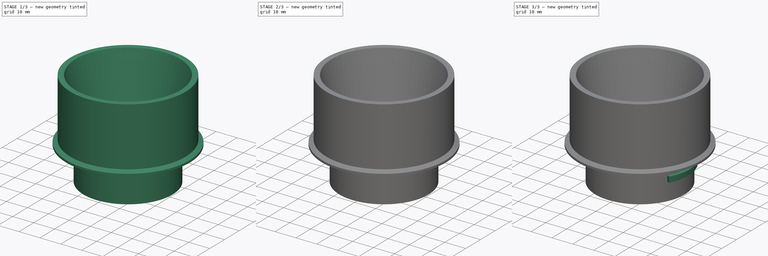
[diagram: build sequence overview — one tinted view per stage of 3, left to right]
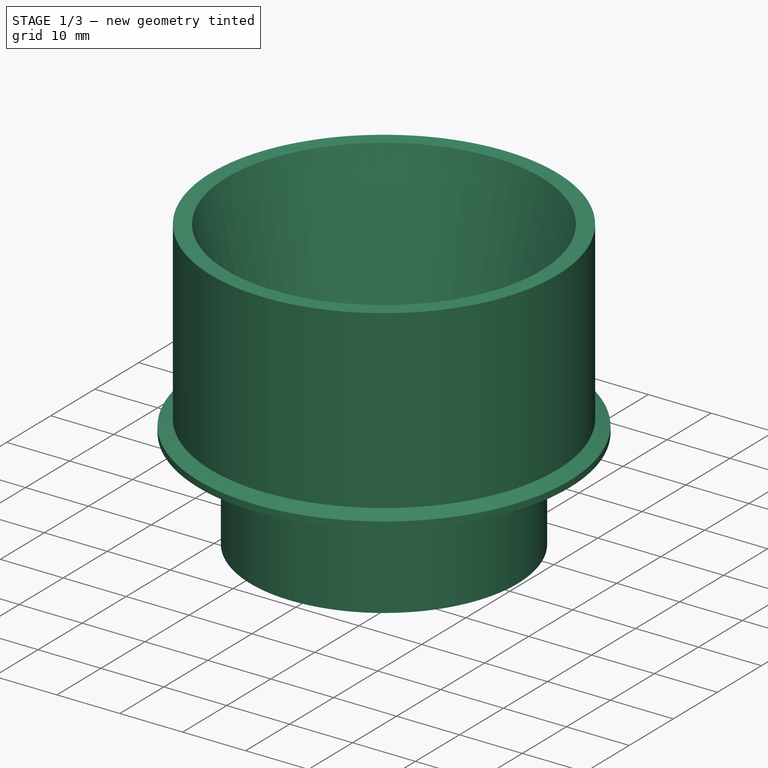
[diagram: stage 1 of 3 — iso view after this stage's code; geometry added in this stage tinted green]
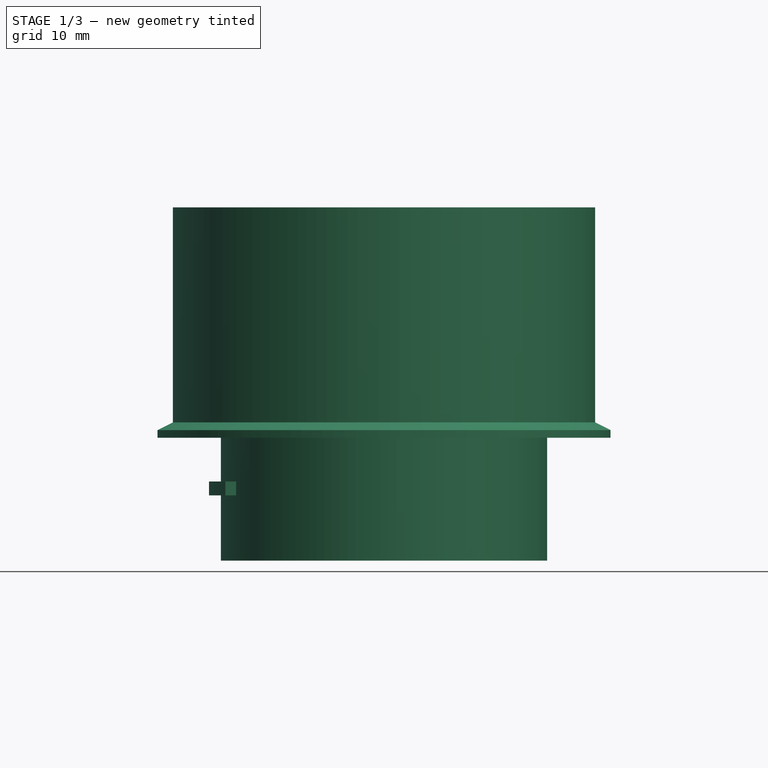
[diagram: stage 1 of 3 — front view after this stage's code; geometry added in this stage tinted green]
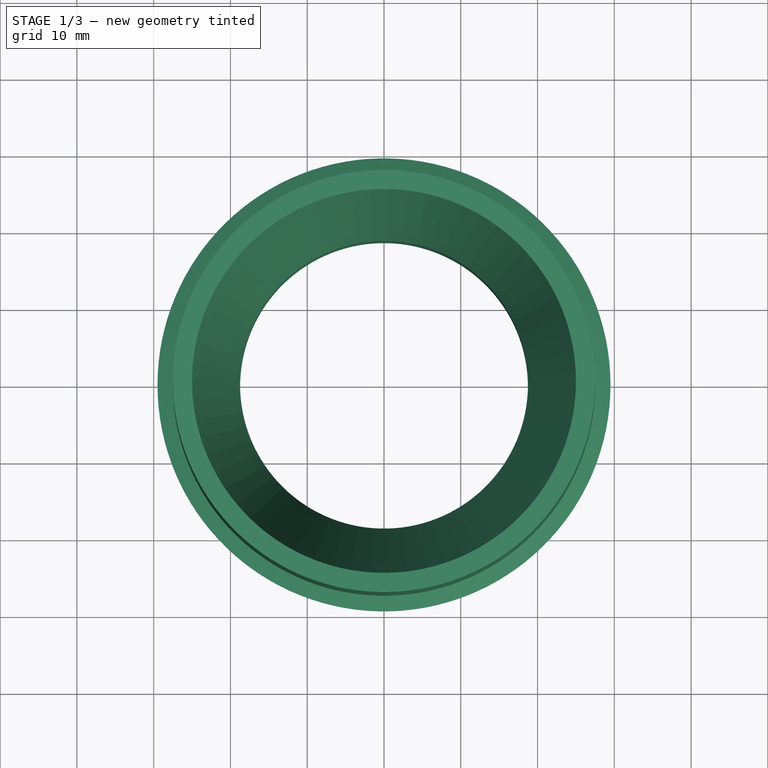
[diagram: stage 1 of 3 — top view after this stage's code; geometry added in this stage tinted green]
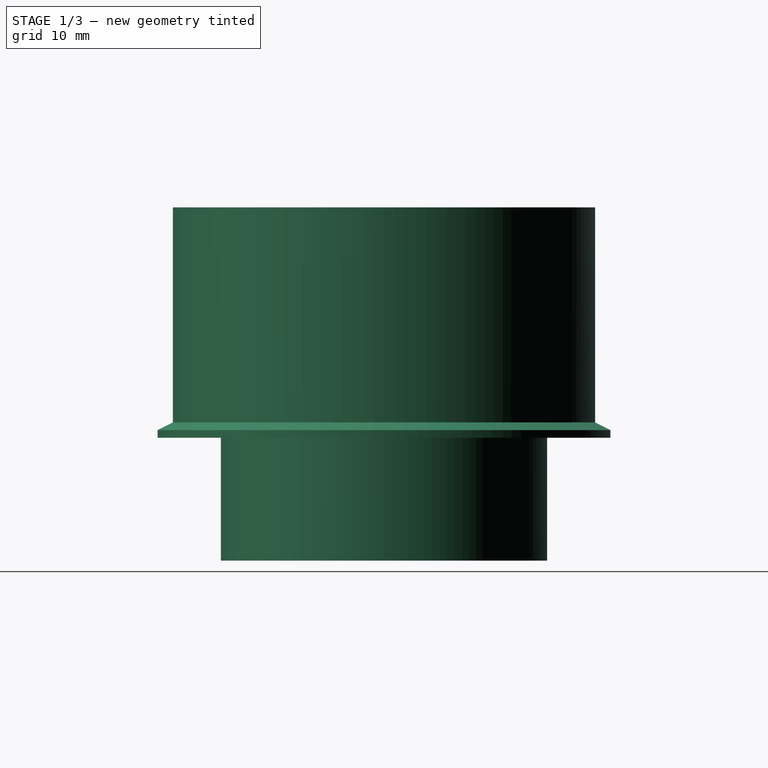
[diagram: stage 1 of 3 — right view after this stage's code; geometry added in this stage tinted green]
FCSTD DOCUMENT  (FreeCAD 0.19R23141 (Git))
Label: VacuumAdapter_new
License: All rights reserved
LicenseURL: http://en.wikipedia.org/wiki/All_rights_reserved
objects: Sketcher::SketchObject×2, PartDesign::Revolution×2, PartDesign::Draft×2, PartDesign::Mirrored×1, PartDesign::Body×1
note: 12 computed .brp shape members not serialized (recipe doc carries the construction recipe); baked Part::Feature solids carry a one-line shape summary decoded from their .brp

FEATURE [Sketcher::SketchObject] Sketch
  MapMode = 5
  Placement = pos=(0,0,0) rot=(1,0,0;1.5708rad)
  Support = -> [XZ_Plane]
  sketch-geometry (9):
    g0: LineSegment StartX=-18.75 StartY=18 StartZ=0 EndX=-18.75 EndY=0 EndZ=0
    g1: LineSegment StartX=-18.75 StartY=0 StartZ=0 EndX=-21.25 EndY=0 EndZ=0
    g2: LineSegment StartX=-21.25 StartY=0 StartZ=0 EndX=-21.25 EndY=16 EndZ=0
    g3: LineSegment StartX=-29.5 StartY=16 StartZ=0 EndX=-21.25 EndY=16 EndZ=0
    g4: LineSegment StartX=-18.75 StartY=18 StartZ=0 EndX=-25 EndY=46 EndZ=0
    g5: LineSegment StartX=-27.5 StartY=46 StartZ=0 EndX=-25 EndY=46 EndZ=0
    g6: LineSegment StartX=-29.5 StartY=16 StartZ=0 EndX=-29.5 EndY=17 EndZ=0
    g7: LineSegment StartX=-29.5 StartY=17 StartZ=0 EndX=-27.5 EndY=18 EndZ=0
    g8: LineSegment StartX=-27.5 StartY=18 StartZ=0 EndX=-27.5 EndY=46 EndZ=0
  constraints (27):
    c: DistanceX(g5,g-1) = 27.5
    c: PointOnObject(g0,g-1)
    c: Vertical(g0)
    c: Coincident(g0,g1)
    c: Coincident(g1,g2)
    c: Vertical(g2)
    c: PointOnObject(g1,g-1)
    c: DistanceX(g1,g-1) = 21.25
    c: DistanceX(g1,g1) = 2.5
    c: DistanceY(g-1,g2) = 16
    c: Coincident(g3,g2)
    c: Horizontal(g3)
    c: Coincident(g4,g0)
    c: DistanceY(g3,g5) = 30
    c: Coincident(g5,g4)
    c: Horizontal(g5)
    c: DistanceX(g5,g5) = 2.5
    c: Coincident(g6,g3)
    c: Vertical(g6)
    c: Coincident(g7,g6)
    c: Coincident(g8,g7)
    c: Coincident(g8,g5)
    c: Vertical(g8)
    c: DistanceX(g7,g7) = 2
    c: DistanceY(g7,g7) = 1
    c: DistanceY(g6,g6) = 1
    c: DistanceY(g0,g0) = 18
FEATURE [PartDesign::Revolution] Revolution
  Angle = 360
  Axis = (0,2e-16,1)
  Base = (0,0,0)
  Placement = pos=(0,0,0) rot=(1,0,0;1.5708rad)
  Profile = -> Sketch
  ReferenceAxis = -> Sketch [V_Axis]
FEATURE [Sketcher::SketchObject] Sketch001
  MapMode = 5
  Placement = pos=(0,0,0) rot=(1,0,0;1.5708rad)
  Support = -> [XZ_Plane]
  sketch-geometry (4):
    g0: LineSegment StartX=-22.8 StartY=10.3 StartZ=0 EndX=-21 EndY=10.3 EndZ=0
    g1: LineSegment StartX=-21 StartY=10.3 StartZ=0 EndX=-21 EndY=8.5 EndZ=0
    g2: LineSegment StartX=-21 StartY=8.5 StartZ=0 EndX=-22.8 EndY=8.5 EndZ=0
    g3: LineSegment StartX=-22.8 StartY=8.5 StartZ=0 EndX=-22.8 EndY=10.3 EndZ=0
  constraints (12):
    c: Coincident(g0,g1)
    c: Coincident(g1,g2)
    c: Coincident(g2,g3)
    c: Coincident(g3,g0)
    c: Horizontal(g0)
    c: Horizontal(g2)
    c: Vertical(g1)
    c: Vertical(g3)
    c: DistanceX(g0,g0) = 1.8
    c: DistanceX(g0,g-1) = 21
    c: DistanceY(g-1,g2) = 8.5
    c: DistanceY(g3,g3) = 1.8
FEATURE [PartDesign::Revolution] Revolution001
  Angle = 50
  Axis = (-3e-16,3e-16,1)
  Base = (0,0,0)
  BaseFeature = -> Revolution
  Midplane = true
  Placement = pos=(0,0,0) rot=(1,0,0;1.5708rad)
  Profile = -> Sketch001
  ReferenceAxis = -> Z_Axis
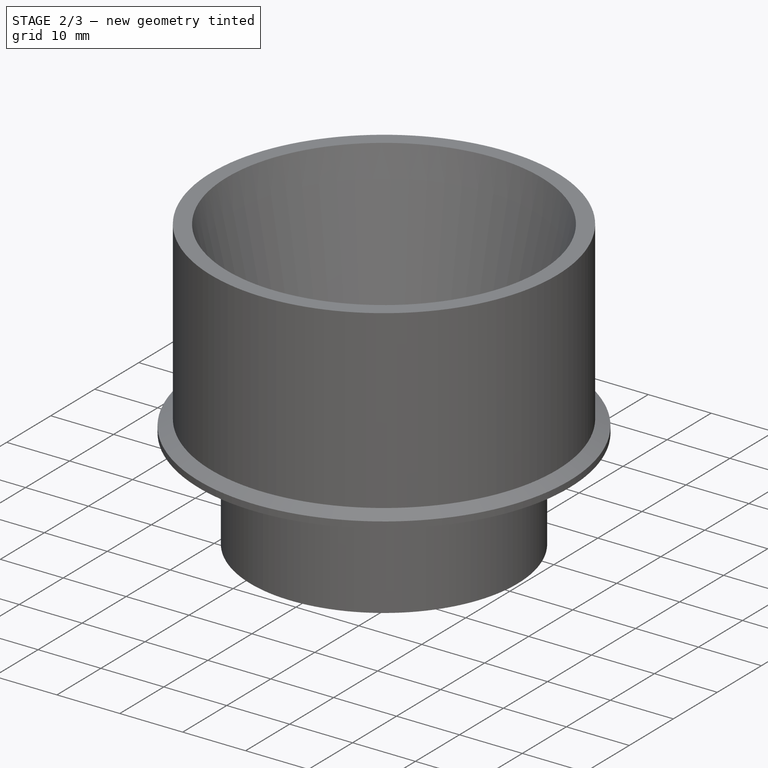
[diagram: stage 2 of 3 — iso view after this stage's code; geometry added in this stage tinted green]
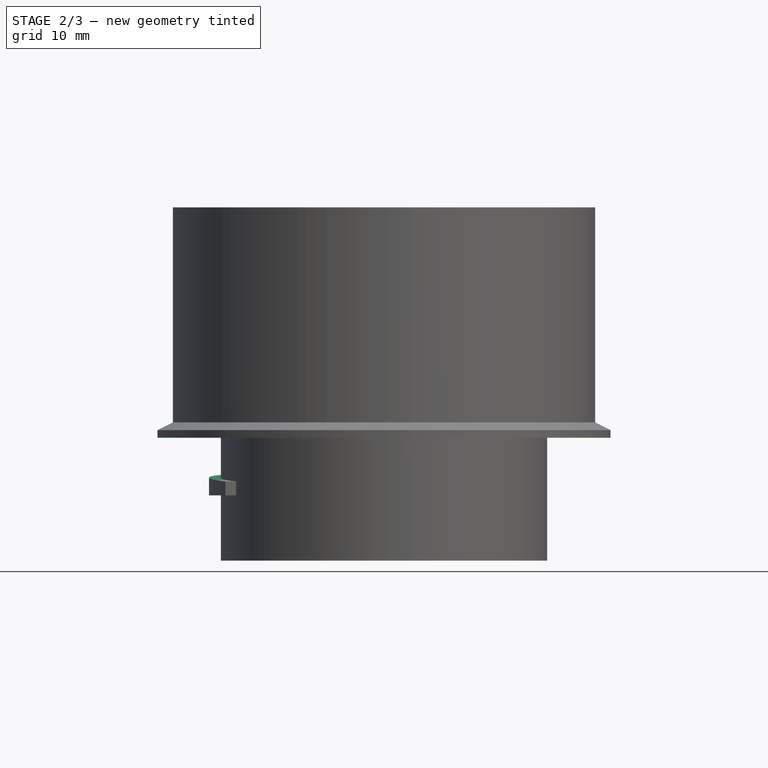
[diagram: stage 2 of 3 — front view after this stage's code; geometry added in this stage tinted green]
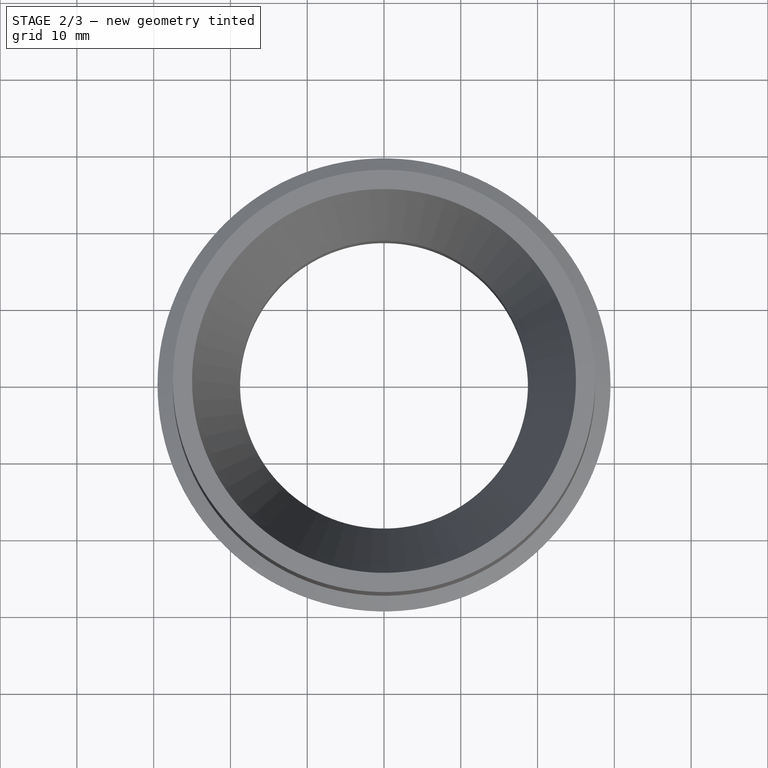
[diagram: stage 2 of 3 — top view after this stage's code; geometry added in this stage tinted green]
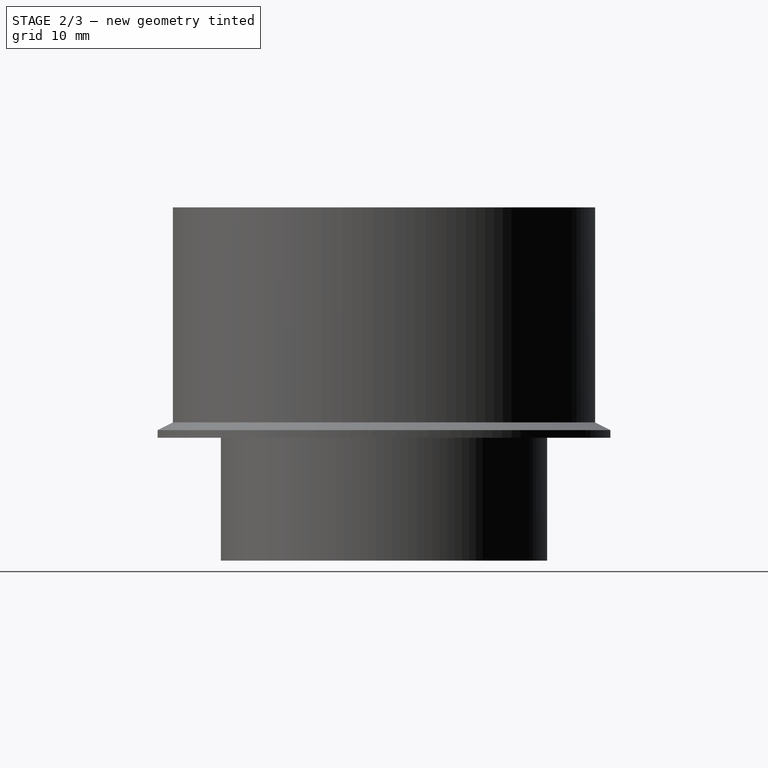
[diagram: stage 2 of 3 — right view after this stage's code; geometry added in this stage tinted green]
FEATURE [PartDesign::Draft] Draft
  Angle = 3
  Base = -> Revolution001 [Face9]
  BaseFeature = -> Revolution001
  NeutralPlane = -> Revolution001 [Face8]
  Placement = pos=(0,0,0) rot=(1,0,0;1.5708rad)
  Reversed = true
  SupportTransform = false
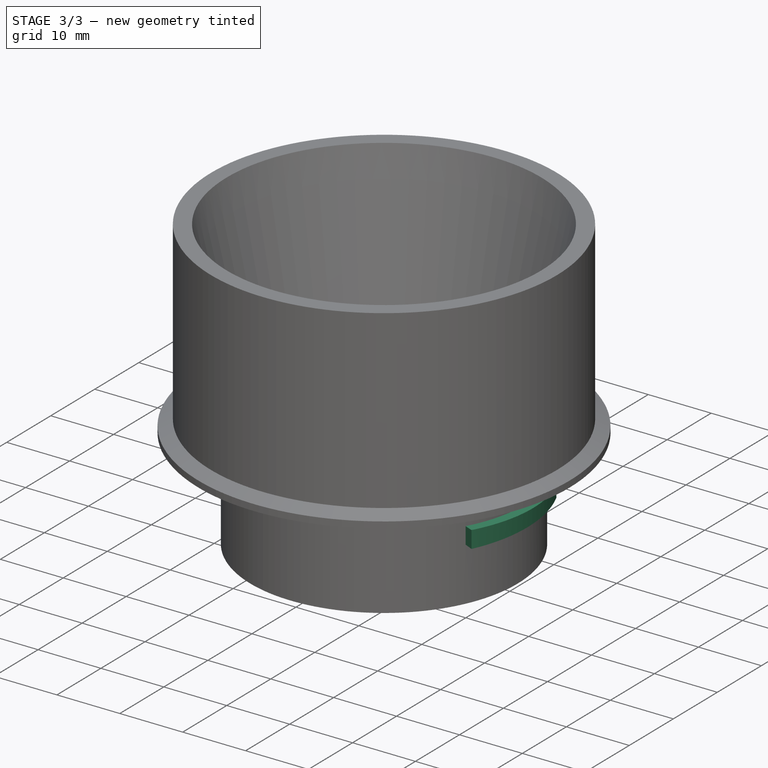
[diagram: stage 3 of 3 — iso view after this stage's code; geometry added in this stage tinted green]
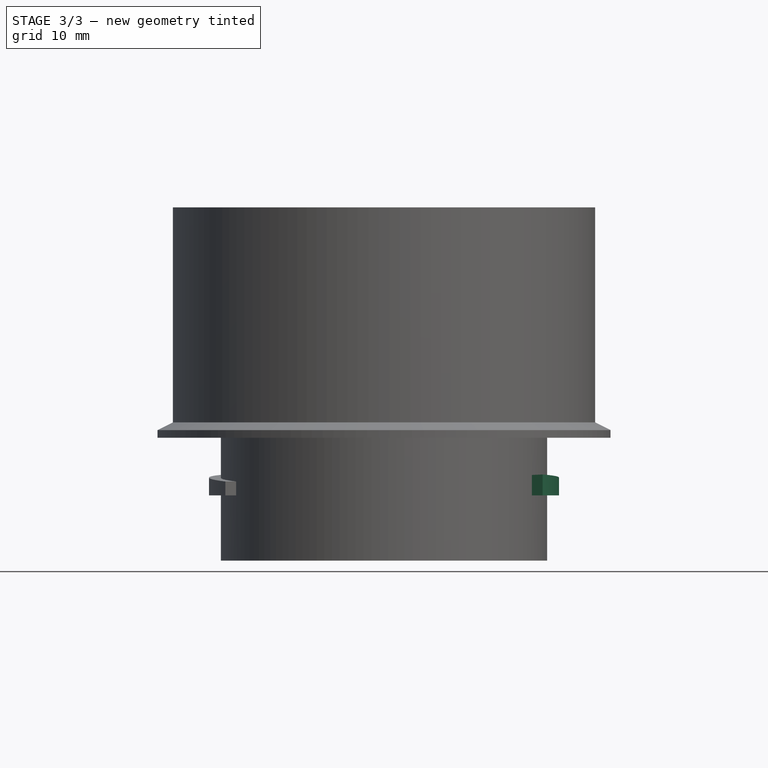
[diagram: stage 3 of 3 — front view after this stage's code; geometry added in this stage tinted green]
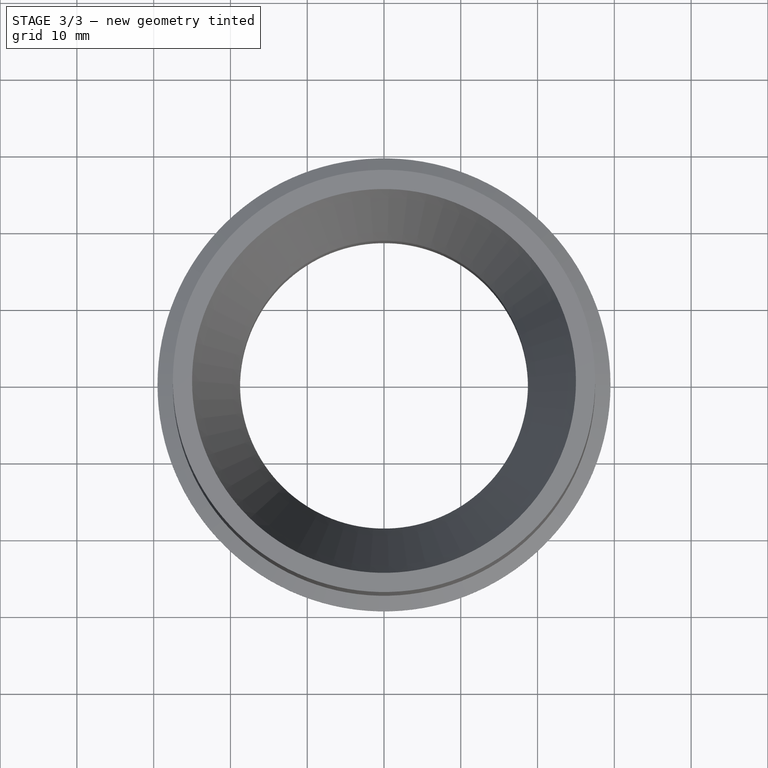
[diagram: stage 3 of 3 — top view after this stage's code; geometry added in this stage tinted green]
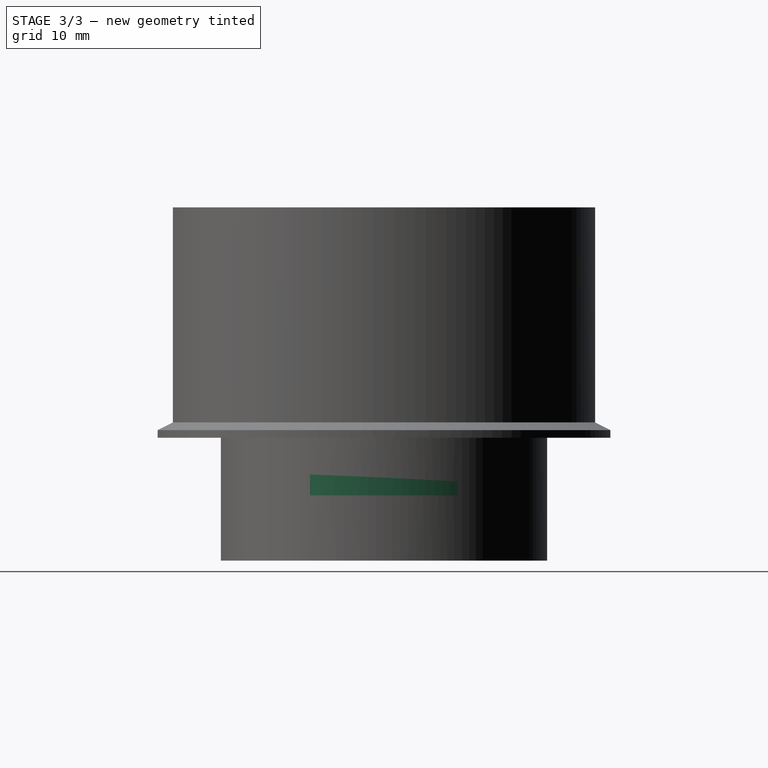
[diagram: stage 3 of 3 — right view after this stage's code; geometry added in this stage tinted green]
FEATURE [PartDesign::Mirrored] Mirrored
  BaseFeature = -> Draft
  MirrorPlane = -> Sketch001 [V_Axis]
  Originals = -> [Revolution001]
  Placement = pos=(0,0,0) rot=(1,0,0;1.5708rad)
FEATURE [PartDesign::Draft] Draft001
  Angle = 3
  Base = -> Mirrored [Face15]
  BaseFeature = -> Mirrored
  NeutralPlane = -> Mirrored [Face14]
  Placement = pos=(0,0,0) rot=(1,0,0;1.5708rad)
  SupportTransform = false
FEATURE [PartDesign::Body] Body
  Group = -> [Sketch,Revolution,Sketch001,Revolution001,Draft,Mirrored,Draft001]
  Origin = -> Origin
  Tip = -> Draft001
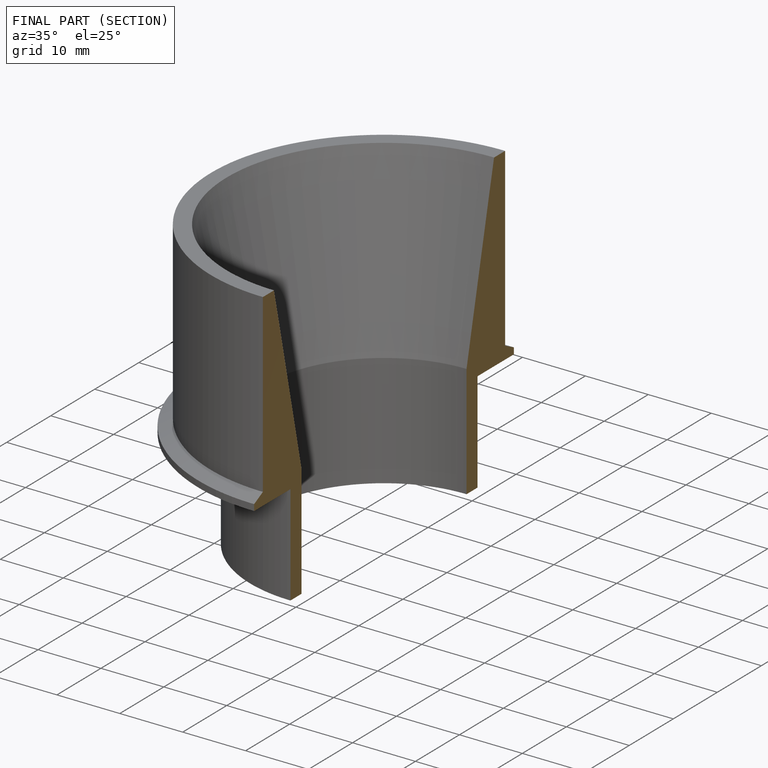
[diagram: finished part — half-section view (interior)]
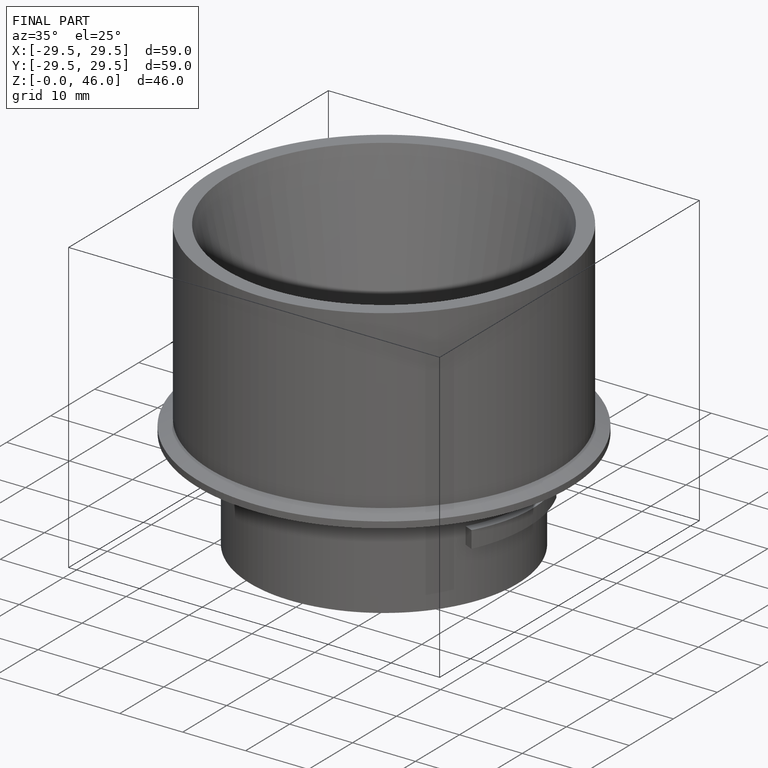
[diagram: finished part — iso view with bounding-box wireframe]
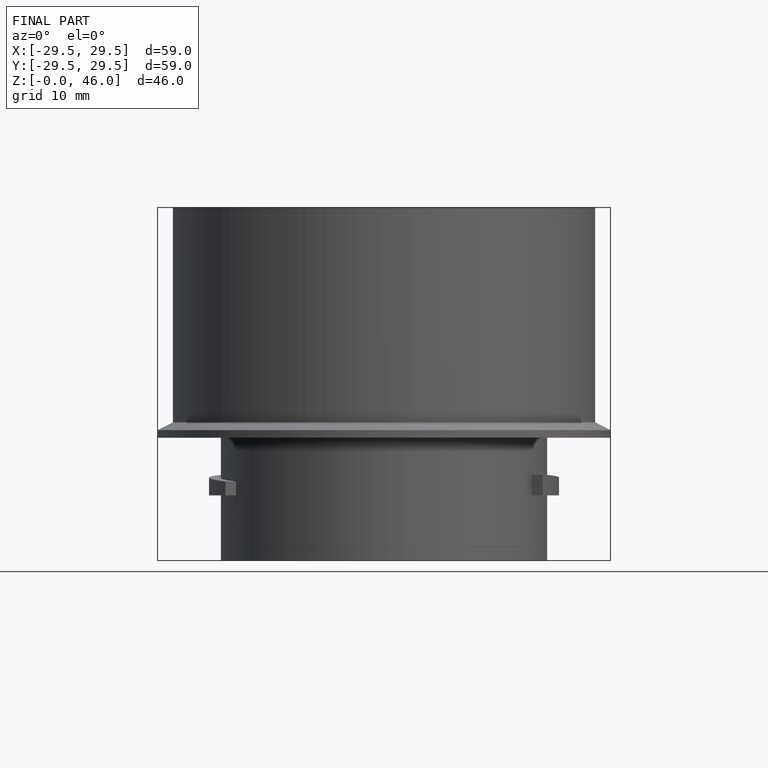
[diagram: finished part — front view with bounding-box wireframe]
